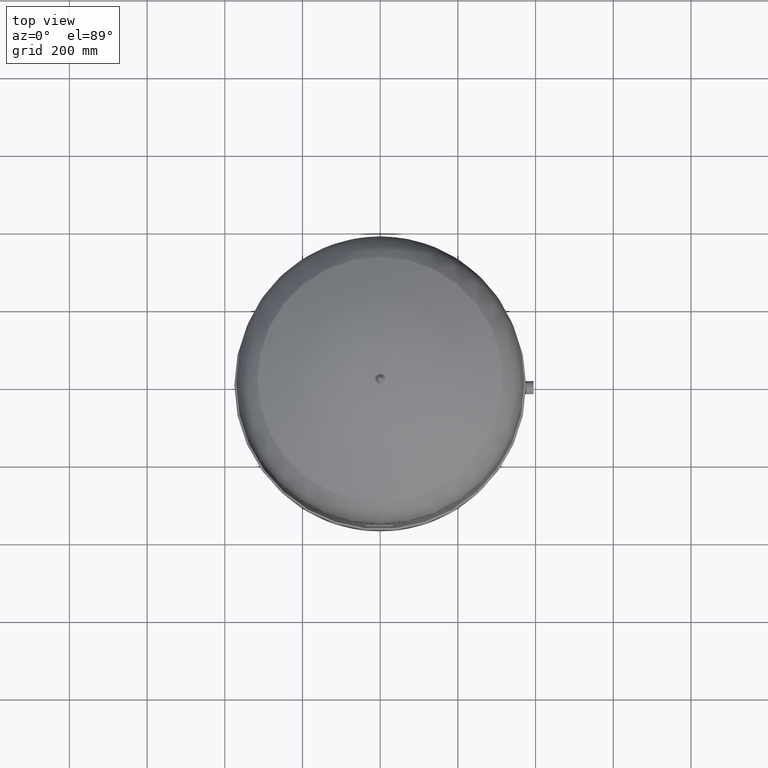
[diagram: clean part render]
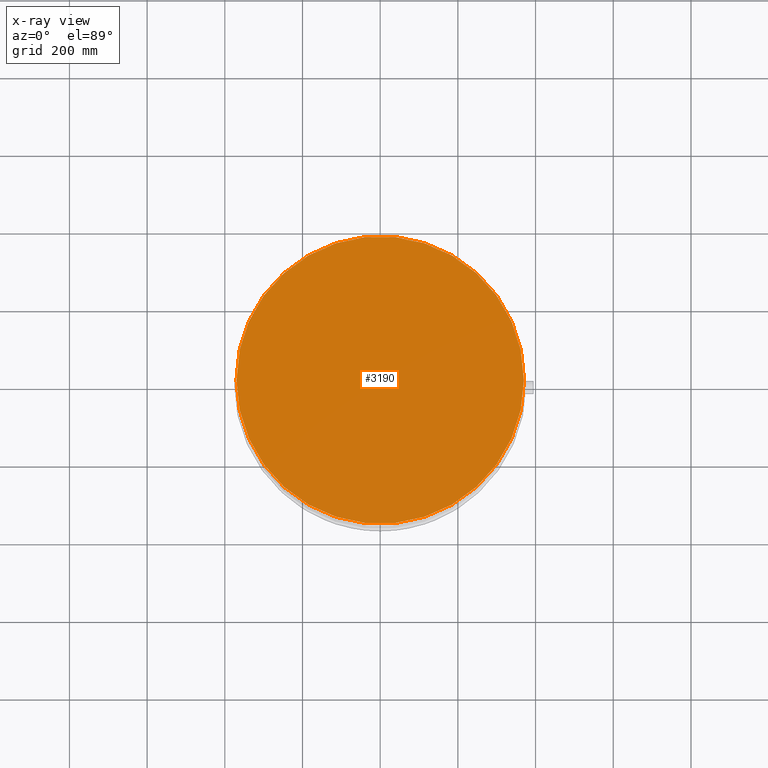
[diagram: x-ray — body ghosted, one internal face saturated and labeled with its STEP entity id]
A machine part, top view, then the same camera in x-ray: the body is ghosted and one INTERNAL B-rep face — a face not visible from any outside direction — is saturated and labeled: STEP entity #3190.
In plain terms, the highlighted face is a freeform B-spline surface patch.
Its self-contained STEP definition (entity closure, byte-faithful):
#2899=CARTESIAN_POINT('',(-370.000000000000060,-3.471874E-014,1341.0));
#2900=VERTEX_POINT('',#2899);
#2909=CARTESIAN_POINT('',(370.0,1.059170E-014,1341.0));
#2910=VERTEX_POINT('',#2909);
#2911=CARTESIAN_POINT('',(0.0,-3.471874E-014,1341.0));
#2912=DIRECTION('',(0.0,0.0,1.0));
#2913=DIRECTION('',(-1.0,0.0,0.0));
#2914=AXIS2_PLACEMENT_3D('',#2911,#2912,#2913);
#2915=CIRCLE('',#2914,370.000000000000060);
#2916=EDGE_CURVE('',#2900,#2910,#2915,.T.);
#3171=CARTESIAN_POINT('',(0.0,-3.471874E-014,1341.0));
#3172=DIRECTION('',(0.0,0.0,1.0));
#3173=DIRECTION('',(-1.0,0.0,0.0));
#3174=AXIS2_PLACEMENT_3D('',#3171,#3172,#3173);
#3175=CIRCLE('',#3174,370.000000000000060);
#3176=EDGE_CURVE('',#2910,#2900,#3175,.T.);
#3181=CARTESIAN_POINT('',(370.000000000000110,370.0,1341.0));
#3182=CARTESIAN_POINT('',(370.000000000000110,-370.000000000000110,1341.000000000000200));
#3183=CARTESIAN_POINT('',(-370.0,370.0,1341.0));
#3184=CARTESIAN_POINT('',(-370.0,-370.000000000000110,1341.0));
#3185=B_SPLINE_SURFACE_WITH_KNOTS('',1,1,((#3181,#3183),(#3182,#3184)),.UNSPECIFIED.,.F.,.F.,.U.,(2,2),(2,2),(0.0,740.000000000000110),(0.0,740.000000000000110),.UNSPECIFIED.);
#3186=ORIENTED_EDGE('',*,*,#2916,.F.);
#3187=ORIENTED_EDGE('',*,*,#3176,.F.);
#3188=EDGE_LOOP('',(#3186,#3187));
#3189=FACE_OUTER_BOUND('',#3188,.T.);
#3190=ADVANCED_FACE('',(#3189),#3185,.T.);